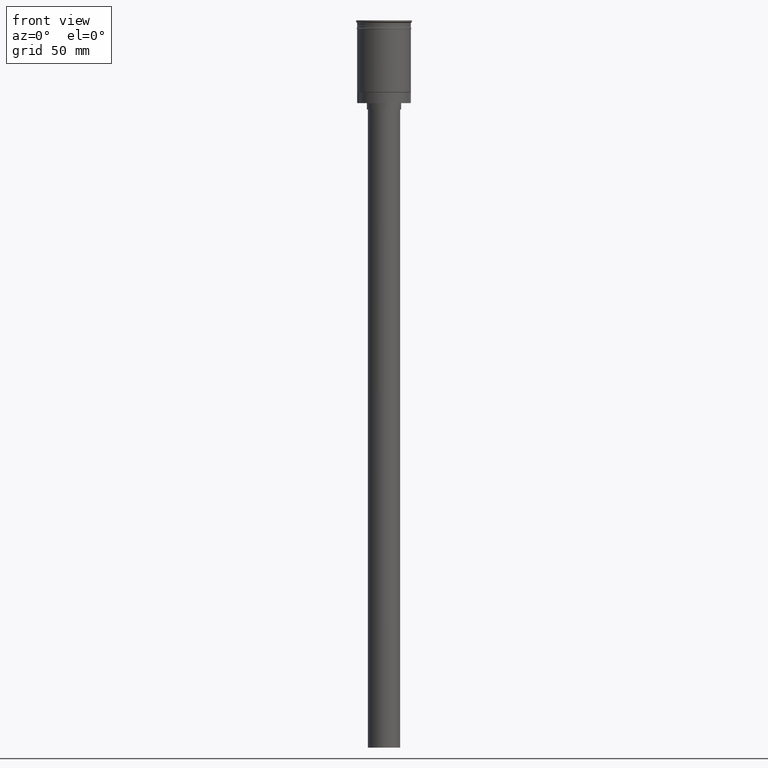
[diagram: clean part render]
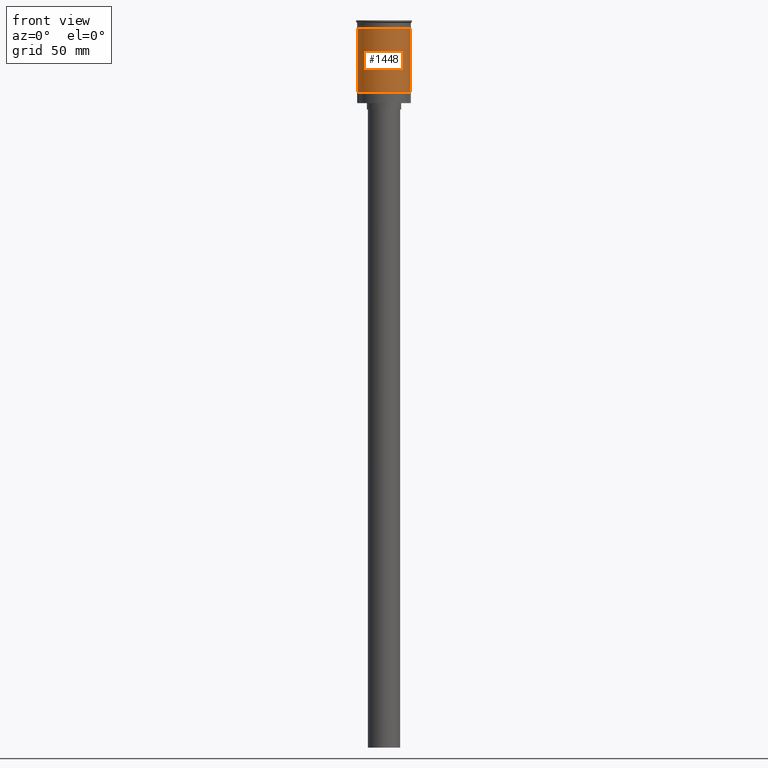
[diagram: same view with one face highlighted and labeled with its STEP entity id]
A machine part, front view. The second image highlights one B-rep face of the part: STEP entity #1448.
In plain terms, the highlighted cylindrical surface (edge-blend (fillet) strip) has radius 12.5 mm, axis along (-0, -0, 1).
Its self-contained STEP definition (entity closure, byte-faithful):
#22 = DIRECTION ( 'NONE',  ( -1.000000000000000000, 0.000000000000000000, 0.000000000000000000 ) ) ;
#40 = EDGE_CURVE ( 'NONE', #365, #121, #139, .T. ) ;
#66 = FACE_OUTER_BOUND ( 'NONE', #1046, .T. ) ;
#121 = VERTEX_POINT ( 'NONE', #687 ) ;
#139 = CIRCLE ( 'NONE', #472, 12.49999999999999645 ) ;
#197 = CIRCLE ( 'NONE', #934, 12.49999999999999822 ) ;
#365 = VERTEX_POINT ( 'NONE', #620 ) ;
#398 = VECTOR ( 'NONE', #923, 1000.000000000000000 ) ;
#414 = EDGE_CURVE ( 'NONE', #121, #734, #1508, .T. ) ;
#420 = VECTOR ( 'NONE', #998, 1000.000000000000000 ) ;
#421 = ORIENTED_EDGE ( 'NONE', *, *, #40, .T. ) ;
#439 = DIRECTION ( 'NONE',  ( 1.000000000000000000, 0.000000000000000000, 0.000000000000000000 ) ) ;
#450 = VERTEX_POINT ( 'NONE', #872 ) ;
#464 = CARTESIAN_POINT ( 'NONE',  ( 0.000000000000000000, 0.000000000000000000, 0.000000000000000000 ) ) ;
#469 = DIRECTION ( 'NONE',  ( -0.000000000000000000, -0.000000000000000000, 1.000000000000000000 ) ) ;
#471 = ORIENTED_EDGE ( 'NONE', *, *, #846, .F. ) ;
#472 = AXIS2_PLACEMENT_3D ( 'NONE', #1124, #764, #22 ) ;
#536 = CARTESIAN_POINT ( 'NONE',  ( 12.49999999999999645, 0.000000000000000000, 0.000000000000000000 ) ) ;
#590 = CYLINDRICAL_SURFACE ( 'NONE', #810, 12.49999999999999645 ) ;
#620 = CARTESIAN_POINT ( 'NONE',  ( -12.49999999999999289, 0.000000000000000000, -33.29999999999996874 ) ) ;
#687 = CARTESIAN_POINT ( 'NONE',  ( 12.49999999999999645, 1.530808498934191127E-15, -33.29999999999996874 ) ) ;
#734 = VERTEX_POINT ( 'NONE', #1335 ) ;
#764 = DIRECTION ( 'NONE',  ( -0.000000000000000000, -0.000000000000000000, 1.000000000000000000 ) ) ;
#810 = AXIS2_PLACEMENT_3D ( 'NONE', #464, #469, #439 ) ;
#846 = EDGE_CURVE ( 'NONE', #450, #734, #197, .T. ) ;
#870 = DIRECTION ( 'NONE',  ( 1.000000000000000000, 0.000000000000000000, 0.000000000000000000 ) ) ;
#872 = CARTESIAN_POINT ( 'NONE',  ( -12.50000000000000000, 1.530808498934191521E-15, -3.999999999999996447 ) ) ;
#923 = DIRECTION ( 'NONE',  ( -0.000000000000000000, -0.000000000000000000, 1.000000000000000000 ) ) ;
#934 = AXIS2_PLACEMENT_3D ( 'NONE', #1235, #1113, #870 ) ;
#998 = DIRECTION ( 'NONE',  ( -0.000000000000000000, -0.000000000000000000, 1.000000000000000000 ) ) ;
#1046 = EDGE_LOOP ( 'NONE', ( #1417, #421, #1250, #471 ) ) ;
#1113 = DIRECTION ( 'NONE',  ( -0.000000000000000000, -0.000000000000000000, 1.000000000000000000 ) ) ;
#1124 = CARTESIAN_POINT ( 'NONE',  ( 0.000000000000000000, 0.000000000000000000, -33.29999999999996874 ) ) ;
#1235 = CARTESIAN_POINT ( 'NONE',  ( 0.000000000000000000, 0.000000000000000000, -3.999999999999996447 ) ) ;
#1250 = ORIENTED_EDGE ( 'NONE', *, *, #414, .T. ) ;
#1317 = CARTESIAN_POINT ( 'NONE',  ( -12.49999999999999645, 1.530808498934191127E-15, 0.000000000000000000 ) ) ;
#1335 = CARTESIAN_POINT ( 'NONE',  ( 12.49999999999999822, 0.000000000000000000, -3.999999999999996447 ) ) ;
#1365 = EDGE_CURVE ( 'NONE', #365, #450, #1432, .T. ) ;
#1417 = ORIENTED_EDGE ( 'NONE', *, *, #1365, .F. ) ;
#1432 = LINE ( 'NONE', #1317, #398 ) ;
#1448 = ADVANCED_FACE ( 'NONE', ( #66 ), #590, .T. ) ;
#1508 = LINE ( 'NONE', #536, #420 ) ;